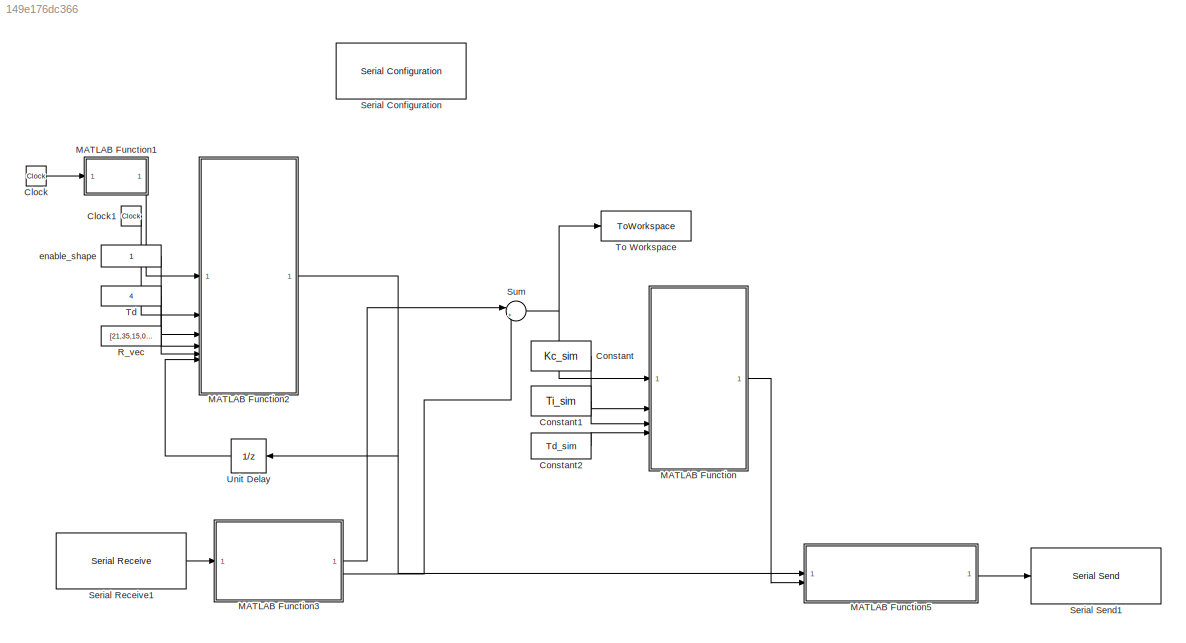
MODEL slx_149e176dc366
KIND model
CONFIG AbsTol = auto
CONFIG EnableMultiTasking = off
CONFIG FixedStep = 0.01
CONFIG MaxStep = auto
CONFIG MinStep = auto
CONFIG RelTol = 1e-3
CONFIG SampleTimeConstraint = Unconstrained
CONFIG SolverName = FixedStepAuto
CONFIG StartTime = 0.0
CONFIG StopTime = 19
BLOCK [Clock] Clock
BLOCK [Clock] Clock1
BLOCK [Constant] Constant
  Value = Kc_sim
BLOCK [Constant] Constant1
  Value = Ti_sim
BLOCK [Constant] Constant2
  Value = Td_sim
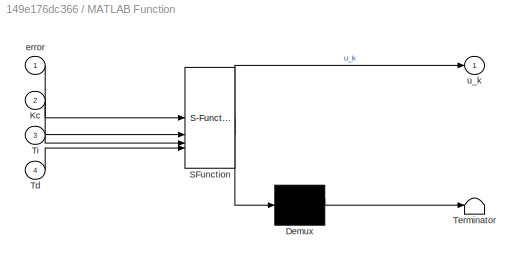
BLOCK [SubSystem] MATLAB Function
  ErrorFcn = Stateflow.Translate.translate
  PermitHierarchicalResolution = ExplicitOnly
  SFBlockType = MATLAB Function
  TreatAsAtomicUnit = on
BLOCK [Demux] MATLAB Function/ Demux 
  Outputs = 1
BLOCK [S-Function] MATLAB Function/ SFunction 
  EnableBusSupport = off
  FunctionName = sf_sfun
  PortCounts = [4 2]
  SFcnIsStateOwnerBlock = off
  SFunctionDeploymentMode = off
  Tag = Stateflow S-Function 10
BLOCK [Terminator] MATLAB Function/ Terminator 
BLOCK [Inport] MATLAB Function/Kc
  Port = 2
BLOCK [Inport] MATLAB Function/Td
  Port = 4
BLOCK [Inport] MATLAB Function/Ti
  Port = 3
BLOCK [Inport] MATLAB Function/error
BLOCK [Outport] MATLAB Function/u_k
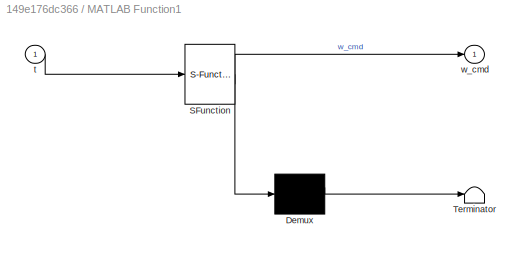
BLOCK [SubSystem] MATLAB Function1
  ErrorFcn = Stateflow.Translate.translate
  PermitHierarchicalResolution = ExplicitOnly
  SFBlockType = MATLAB Function
  TreatAsAtomicUnit = on
BLOCK [Demux] MATLAB Function1/ Demux 
  Outputs = 1
BLOCK [S-Function] MATLAB Function1/ SFunction 
  EnableBusSupport = off
  FunctionName = sf_sfun
  PortCounts = [1 2]
  SFcnIsStateOwnerBlock = off
  SFunctionDeploymentMode = off
  Tag = Stateflow S-Function 2
BLOCK [Terminator] MATLAB Function1/ Terminator 
BLOCK [Inport] MATLAB Function1/t
BLOCK [Outport] MATLAB Function1/w_cmd
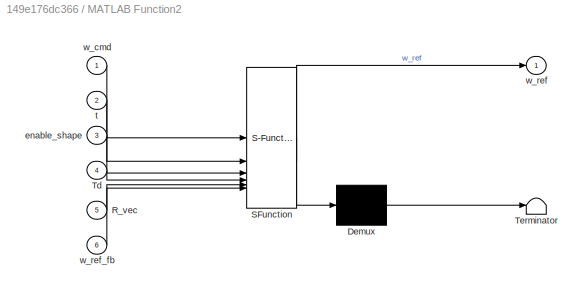
BLOCK [SubSystem] MATLAB Function2
  ErrorFcn = Stateflow.Translate.translate
  PermitHierarchicalResolution = ExplicitOnly
  SFBlockType = MATLAB Function
  TreatAsAtomicUnit = on
BLOCK [Demux] MATLAB Function2/ Demux 
  Outputs = 1
BLOCK [S-Function] MATLAB Function2/ SFunction 
  EnableBusSupport = off
  FunctionName = sf_sfun
  PortCounts = [6 2]
  SFcnIsStateOwnerBlock = off
  SFunctionDeploymentMode = off
  Tag = Stateflow S-Function 4
BLOCK [Terminator] MATLAB Function2/ Terminator 
BLOCK [Inport] MATLAB Function2/R_vec
  Port = 5
BLOCK [Inport] MATLAB Function2/Td
  Port = 4
BLOCK [Inport] MATLAB Function2/enable_shape
  Port = 3
BLOCK [Inport] MATLAB Function2/t
  Port = 2
BLOCK [Inport] MATLAB Function2/w_cmd
BLOCK [Outport] MATLAB Function2/w_ref
BLOCK [Inport] MATLAB Function2/w_ref_fb
  Port = 6
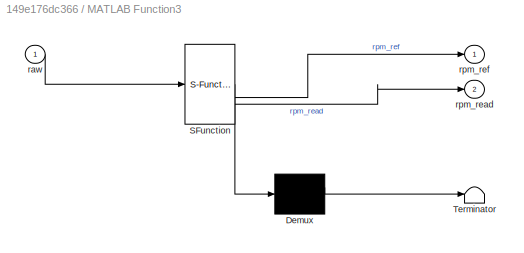
BLOCK [SubSystem] MATLAB Function3
  ErrorFcn = Stateflow.Translate.translate
  PermitHierarchicalResolution = ExplicitOnly
  SFBlockType = MATLAB Function
  TreatAsAtomicUnit = on
BLOCK [Demux] MATLAB Function3/ Demux 
  Outputs = 1
BLOCK [S-Function] MATLAB Function3/ SFunction 
  EnableBusSupport = off
  FunctionName = sf_sfun
  PortCounts = [1 3]
  SFcnIsStateOwnerBlock = off
  SFunctionDeploymentMode = off
  Tag = Stateflow S-Function 6
BLOCK [Terminator] MATLAB Function3/ Terminator 
BLOCK [Inport] MATLAB Function3/raw
BLOCK [Outport] MATLAB Function3/rpm_read
  Port = 2
BLOCK [Outport] MATLAB Function3/rpm_ref
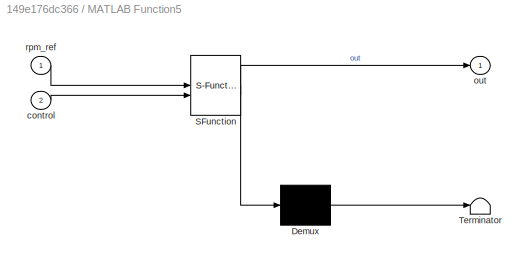
BLOCK [SubSystem] MATLAB Function5
  ErrorFcn = Stateflow.Translate.translate
  PermitHierarchicalResolution = ExplicitOnly
  SFBlockType = MATLAB Function
  TreatAsAtomicUnit = on
BLOCK [Demux] MATLAB Function5/ Demux 
  Outputs = 1
BLOCK [S-Function] MATLAB Function5/ SFunction 
  EnableBusSupport = off
  FunctionName = sf_sfun
  PortCounts = [2 2]
  SFcnIsStateOwnerBlock = off
  SFunctionDeploymentMode = off
  Tag = Stateflow S-Function 9
BLOCK [Terminator] MATLAB Function5/ Terminator 
BLOCK [Inport] MATLAB Function5/control
  Port = 2
BLOCK [Outport] MATLAB Function5/out
BLOCK [Inport] MATLAB Function5/rpm_ref
BLOCK [Constant] R_vec
  SampleTime = -1
  Value = [21,35,15,0,0,0]
BLOCK [Reference] Serial Configuration  REF=instrumentseriallib/Serial Configuration
  LibrarySourceBlock = instrumentlib/Serial Configuration
  Priority = -200000
  SourceBlock = instrumentseriallib/Serial Configuration
  SourceType = system.SerialConfiguration
BLOCK [Reference] Serial Receive1  REF=instrumentseriallib/Serial Receive
  LibrarySourceBlock = instrumentlib/Serial Receive
  Priority = 1
  SourceBlock = instrumentseriallib/Serial Receive
  SourceType = system.SerialReceive
BLOCK [Reference] Serial Send1  REF=instrumentseriallib/Serial Send
  LibrarySourceBlock = instrumentlib/Serial Send
  Priority = 1
  SourceBlock = instrumentseriallib/Serial Send
  SourceType = system.SerialSend
BLOCK [Sum] Sum
  Inputs = |+-
BLOCK [Constant] Td
  SampleTime = -1
  Value = 4
BLOCK [ToWorkspace] To Workspace
  FixptAsFi = on
  MaxDataPoints = inf
  SampleTime = -1
  SaveFormat = Timeseries
  VariableName = error_sim
BLOCK [UnitDelay] Unit Delay
  HasFrameUpgradeWarning = on
  NameLocation = top
  SampleTime = -1
BLOCK [Constant] enable_shape
  SampleTime = -1
LINE Clock1:1 -> MATLAB Function2:2
LINE Clock:1 -> MATLAB Function1:1
LINE Constant1:1 -> MATLAB Function:3
LINE Constant2:1 -> MATLAB Function:4
LINE Constant:1 -> MATLAB Function:2
LINE MATLAB Function1:1 -> MATLAB Function2:1
NET MATLAB Function2:1 -> MATLAB Function5:1, Unit Delay:1
LINE MATLAB Function3:1 -> Sum:1
LINE MATLAB Function3:2 -> Sum:2
LINE MATLAB Function5:1 -> Serial Send1:1
LINE MATLAB Function:1 -> MATLAB Function5:2
LINE R_vec:1 -> MATLAB Function2:5
LINE Serial Receive1:1 -> MATLAB Function3:1
NET Sum:1 -> MATLAB Function:1, To Workspace:1
LINE Td:1 -> MATLAB Function2:4
LINE Unit Delay:1 -> MATLAB Function2:6
LINE enable_shape:1 -> MATLAB Function2:3
note: NET lines group one-source signal fan-out (src -> all destinations, sorted); 1:1 wires keep LINE
CHART MATLAB Function1 states=1 transitions=1
  STATE_LABEL 'eML_blk_kernel()'
  STATE_LABEL 'SCRIPT:\nfunction w_cmd = Generador_Perfil(t)\n    % Genera la señal escalón para alimentar al suavizador Bezier\n    % Secuencia: 540 -> 1160 -> 800\n    \n    % --- CONFIGURACIÓN DE TIEMPOS ---\n    % Td es 4 segundos. Dejamos un margen para que se estabilice.\n    t_inicio = 1;   % Tiempo para el primer cambio (540 -> 1160)\n    t_bajada = 10;  % Tiempo para el segundo cambio (1160 -> 800)\n    \n    % -...<+280ch>'
CHART MATLAB Function2 states=1 transitions=1
  STATE_LABEL 'eML_blk_kernel()'
  STATE_LABEL 'SCRIPT:\nfunction w_ref = BezierRef(w_cmd, t, enable_shape, Td, R_vec, w_ref_fb)\n% =================================================================\n% VERSIÓN 6 (Corrección de arranque en cero)\n% =================================================================\n%\n% Entradas:\n%   w_cmd     : setpoint deseado (de la GUI)\n%   t         : tiempo absoluto (Clock)\n%   enable_shape : 1 = perfilar, 0 = pas...<+1893ch>'
CHART MATLAB Function3 states=1 transitions=1
  STATE_LABEL 'eML_blk_kernel()'
  STATE_LABEL 'SCRIPT:\nfunction [rpm_ref, rpm_read] = parseRPM(raw)\n%#codegen\n% raw: 1x2 uint16 vector received from ESP32\n% rpm_read: measured RPM from encoder\n% rpm_ref:  reference RPM echoed back from ESP32\n\nrpm_read = double(raw(2));   % first  uint16 from ESP32\nrpm_ref  = double(raw(1));   % second uint16 from ESP32\nend\n'
CHART MATLAB Function5 states=1 transitions=1
  STATE_LABEL 'eML_blk_kernel()'
  STATE_LABEL 'SCRIPT:\nfunction out = packRefAndPWM(rpm_ref, control)\n% Esta función ahora empaqueta [rpm_ref, frequency_hz]\n% El \'control_signal\' (antes \'voltage\') viene de 0-60 desde el "Knob".\n\n% --- 1. Escalado lineal ---\n% Frecuencia (0-60 Hz)\ntarget_freq = control;\n\n% --- 2. Empaquetado ---\n% Convierte ambos valores a uint16 para enviar por UART\nfreq_u16 = uint16(target_freq);\nrpm_ref_u16 = uint16(rpm_ref)...<+101ch>'
CHART MATLAB Function states=1 transitions=1
  STATE_LABEL 'eML_blk_kernel()'
  STATE_LABEL 'SCRIPT:\nfunction u_k = PID_Controller(error, Kc, Ti, Td)\n    % ENTRADAS (Puertos en Simulink):\n    %   error: Señal de error (Referencia - Salida)\n    %   Kc, Ti, Td: Parámetros que vienen del Workspace (vía bloques Constant)\n    \n    % PARÁMETROS FIJOS (Ajusta si tu muestreo es distinto)\n    Ts_s = 0.01;  % Tiempo de muestreo\n    N = 100;      % Coeficiente del filtro derivativo\n\n    % VARIABLES ...<+1382ch>'
CHART  states=0 transitions=0
CHART  states=0 transitions=0
CHART  states=0 transitions=0
CHART  states=0 transitions=0
CHART  states=0 transitions=0
